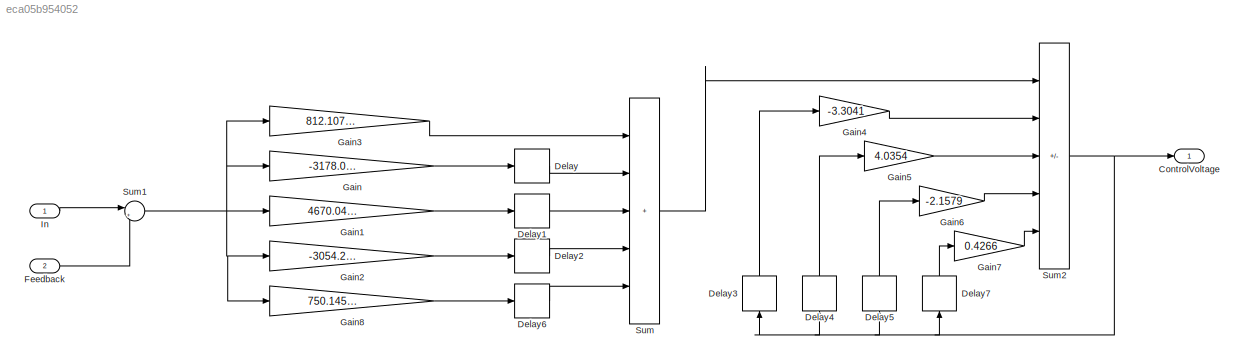
MODEL slx_eca05b954052
KIND model
CONFIG AbsTol = auto
CONFIG EnableMultiTasking = off
CONFIG FixedStep = 0.005
CONFIG MaxStep = auto
CONFIG MinStep = auto
CONFIG RelTol = 1e-3
CONFIG SampleTimeConstraint = Unconstrained
CONFIG SolverName = FixedStepDiscrete
CONFIG StartTime = 0.0
CONFIG StopTime = 10.0
BLOCK [Outport] ControlVoltage
BLOCK [Delay] Delay
  DelayLength = 1
  InputPortMap = u0
BLOCK [Delay] Delay1
  InputPortMap = u0
BLOCK [Delay] Delay2
  DelayLength = 3
  InputPortMap = u0
BLOCK [Delay] Delay3
  DelayLength = 1
  InputPortMap = u0
  NameLocation = right
BLOCK [Delay] Delay4
  InputPortMap = u0
  NameLocation = right
BLOCK [Delay] Delay5
  DelayLength = 3
  InputPortMap = u0
  NameLocation = right
BLOCK [Delay] Delay6
  DelayLength = 4
  InputPortMap = u0
BLOCK [Delay] Delay7
  DelayLength = 4
  InputPortMap = u0
  NameLocation = right
BLOCK [Inport] Feedback
  Port = 2
BLOCK [Gain] Gain
  Gain = -3178.01865
BLOCK [Gain] Gain1
  Gain = 4670.04012
BLOCK [Gain] Gain2
  Gain = -3054.27392
BLOCK [Gain] Gain3
  Gain = 812.10761
BLOCK [Gain] Gain4
  Gain = -3.3041
BLOCK [Gain] Gain5
  Gain = 4.0354
BLOCK [Gain] Gain6
  Gain = -2.1579
BLOCK [Gain] Gain7
  Gain = 0.4266
BLOCK [Gain] Gain8
  Gain = 750.14587
BLOCK [Inport] In
BLOCK [Sum] Sum
  IconShape = rectangular
  Inputs = +++++
BLOCK [Sum] Sum1
  Inputs = |+-
BLOCK [Sum] Sum2
  IconShape = rectangular
  Inputs = +----
LINE Delay1:1 -> Sum:3
LINE Delay2:1 -> Sum:4
LINE Delay3:1 -> Gain4:1
LINE Delay4:1 -> Gain5:1
LINE Delay5:1 -> Gain6:1
LINE Delay6:1 -> Sum:5
LINE Delay7:1 -> Gain7:1
LINE Delay:1 -> Sum:2
LINE Feedback:1 -> Sum1:2
LINE Gain1:1 -> Delay1:1
LINE Gain2:1 -> Delay2:1
LINE Gain3:1 -> Sum:1
LINE Gain4:1 -> Sum2:2
LINE Gain5:1 -> Sum2:3
LINE Gain6:1 -> Sum2:4
LINE Gain7:1 -> Sum2:5
LINE Gain8:1 -> Delay6:1
LINE Gain:1 -> Delay:1
LINE In:1 -> Sum1:1
NET Sum1:1 -> Gain1:1, Gain2:1, Gain3:1, Gain8:1, Gain:1
NET Sum2:1 -> ControlVoltage:1, Delay3:1, Delay4:1, Delay5:1, Delay7:1
LINE Sum:1 -> Sum2:1
note: NET lines group one-source signal fan-out (src -> all destinations, sorted); 1:1 wires keep LINE
